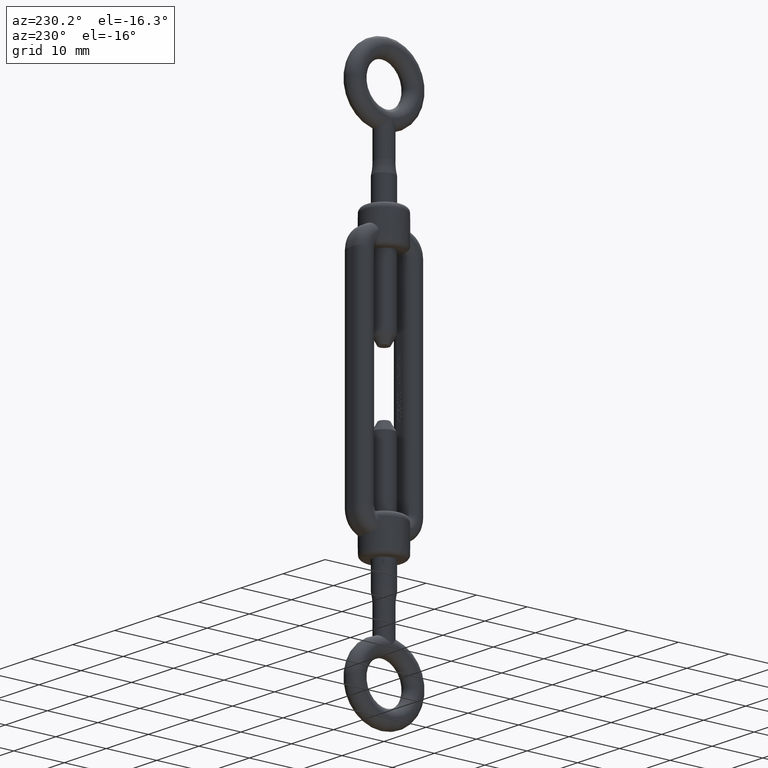
[diagram: clean part render]
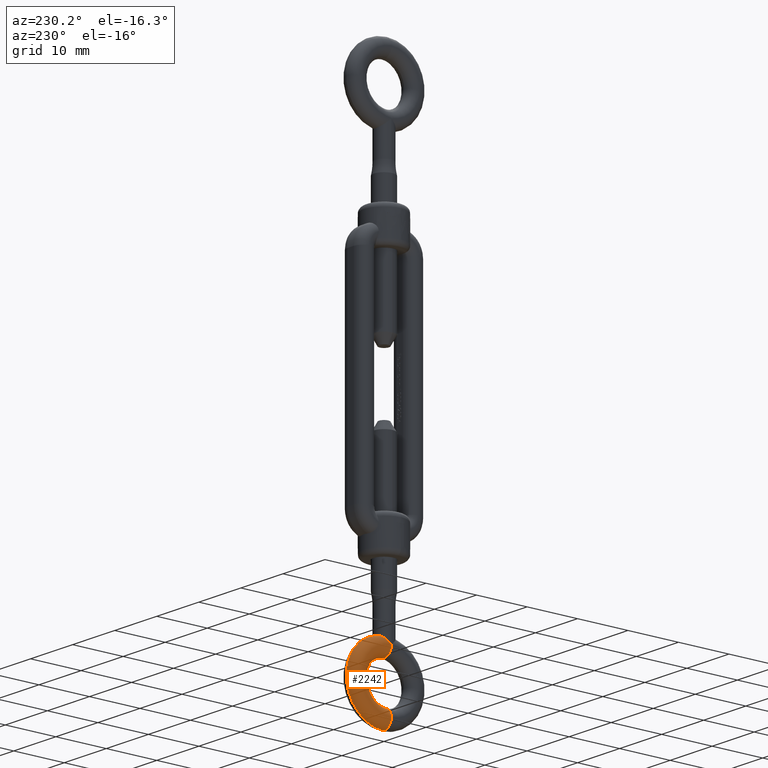
[diagram: same view with one face highlighted and labeled with its STEP entity id]
A machine part, auxiliary view. The second image highlights one B-rep face of the part: STEP entity #2242.
In plain terms, the highlighted toroidal blend (fillet) surface has major radius 5.75 mm and minor (blend) radius 1.75 mm.
Its self-contained STEP definition (entity closure, byte-faithful):
#128 = ORIENTED_EDGE ( 'NONE', *, *, #8138, .F. ) ;
#533 = ORIENTED_EDGE ( 'NONE', *, *, #10353, .T. ) ;
#965 = CARTESIAN_POINT ( 'NONE',  ( 5.645285852987865700E-027, -13.25000000000000000, -1.750000000000000900 ) ) ;
#1297 = CARTESIAN_POINT ( 'NONE',  ( 0.0000000000000000000, -3.500000000000000000, -6.039690927702273600E-016 ) ) ;
#2242 = ADVANCED_FACE ( 'NONE', ( #3321 ), #5197, .T. ) ;
#2330 = CARTESIAN_POINT ( 'NONE',  ( -0.1918324580474454200, -13.44173384753478800, -1.750000000000000900 ) ) ;
#3136 = ORIENTED_EDGE ( 'NONE', *, *, #9490, .F. ) ;
#3321 = FACE_OUTER_BOUND ( 'NONE', #15699, .T. ) ;
#3448 = VERTEX_POINT ( 'NONE', #6687 ) ;
#3559 = CARTESIAN_POINT ( 'NONE',  ( -1.673163314596055600, -14.73218205982129100, -0.5297443577829394900 ) ) ;
#3671 = CARTESIAN_POINT ( 'NONE',  ( -1.629171173080286700, -14.69722296284966000, -0.6517677642536324800 ) ) ;
#3929 = CIRCLE ( 'NONE', #4483, 7.500000000000000000 ) ;
#4074 = CARTESIAN_POINT ( 'NONE',  ( 0.0000000000000000000, -7.500000000000000000, -8.182822826210140600E-016 ) ) ;
#4132 = VERTEX_POINT ( 'NONE', #12163 ) ;
#4304 = CIRCLE ( 'NONE', #8559, 1.750000000000000000 ) ;
#4483 = AXIS2_PLACEMENT_3D ( 'NONE', #4074, #13375, #15999 ) ;
#4833 = CARTESIAN_POINT ( 'NONE',  ( -1.217838959239358800, -14.36097278892466300, -1.261771236147857000 ) ) ;
#4889 = CARTESIAN_POINT ( 'NONE',  ( -1.516541877302765200, -14.60667161725719300, -0.8826667910955876600 ) ) ;
#4940 = CARTESIAN_POINT ( 'NONE',  ( -1.750000000000000000, -14.79297607290741100, -1.577750232611953600E-015 ) ) ;
#5197 = TOROIDAL_SURFACE ( 'NONE', #11948, 5.750000000000000000, 1.750000000000000000 ) ;
#5483 = VERTEX_POINT ( 'NONE', #1297 ) ;
#5486 = AXIS2_PLACEMENT_3D ( 'NONE', #8125, #14807, #12347 ) ;
#5720 = VERTEX_POINT ( 'NONE', #6269 ) ;
#6107 = VERTEX_POINT ( 'NONE', #9371 ) ;
#6229 = CARTESIAN_POINT ( 'NONE',  ( -0.7720928522844274800, -13.97863472973736700, -1.583784484838959100 ) ) ;
#6269 = CARTESIAN_POINT ( 'NONE',  ( -1.750000000000000000, -14.79297607290741100, -1.577750232611953600E-015 ) ) ;
#6687 = CARTESIAN_POINT ( 'NONE',  ( 0.0000000000000000000, 1.084202172485504400E-016, 2.490424338411780800E-016 ) ) ;
#7801 = DIRECTION ( 'NONE',  ( -1.000000000000000000, 0.0000000000000000000, 0.0000000000000000000 ) ) ;
#8125 = CARTESIAN_POINT ( 'NONE',  ( 0.0000000000000000000, -7.500000000000000000, -6.039690927702272600E-016 ) ) ;
#8138 = EDGE_CURVE ( 'NONE', #4132, #6107, #13560, .T. ) ;
#8559 = AXIS2_PLACEMENT_3D ( 'NONE', #11906, #7801, #14420 ) ;
#8897 = CARTESIAN_POINT ( 'NONE',  ( -1.449694704314161700, -14.55249835651754800, -0.9876031791507212700 ) ) ;
#9097 = AXIS2_PLACEMENT_3D ( 'NONE', #13931, #16664, #15214 ) ;
#9371 = CARTESIAN_POINT ( 'NONE',  ( 4.898587196589411800E-016, -11.50000000000000000, -6.039690927702270600E-016 ) ) ;
#9490 = EDGE_CURVE ( 'NONE', #6107, #5483, #11154, .T. ) ;
#10311 = DIRECTION ( 'NONE',  ( 0.0000000000000000000, 1.000000000000000000, 1.423099621949589700E-016 ) ) ;
#10353 = EDGE_CURVE ( 'NONE', #5720, #3448, #3929, .T. ) ;
#11154 = CIRCLE ( 'NONE', #5486, 4.000000000000000000 ) ;
#11475 = ORIENTED_EDGE ( 'NONE', *, *, #11624, .T. ) ;
#11619 = DIRECTION ( 'NONE',  ( -0.0000000000000000000, 1.423099621949589700E-016, -1.000000000000000000 ) ) ;
#11624 = EDGE_CURVE ( 'NONE', #3448, #5483, #4304, .T. ) ;
#11813 = ORIENTED_EDGE ( 'NONE', *, *, #15956, .F. ) ;
#11906 = CARTESIAN_POINT ( 'NONE',  ( 0.0000000000000000000, -1.749999999999999800, 0.0000000000000000000 ) ) ;
#11948 = AXIS2_PLACEMENT_3D ( 'NONE', #15655, #11619, #10311 ) ;
#12163 = CARTESIAN_POINT ( 'NONE',  ( 5.645285852987865700E-027, -13.25000000000000000, -1.750000000000000900 ) ) ;
#12347 = DIRECTION ( 'NONE',  ( 0.0000000000000000000, 1.000000000000000000, 1.423099621949590000E-016 ) ) ;
#12855 = CARTESIAN_POINT ( 'NONE',  ( -1.750000000000000000, -14.79297607290741100, -0.1346006798177146500 ) ) ;
#13037 = B_SPLINE_CURVE_WITH_KNOTS ( 'NONE', 3,
 ( #4940, #12855, #15473, #3559, #3671, #4889, #8897, #15591, #4833, #14142, #6229, #16806, #2330, #965 ),
 .UNSPECIFIED., .F., .F.,
 ( 4, 2, 2, 2, 2, 2, 4 ),
 ( 0.003234267388771162300, 0.003641100614888048000, 0.004047933841004933300, 0.004454767067121819500, 0.004861600293238704800, 0.005675266745472475400, 0.006488933197706246900 ),
 .UNSPECIFIED. ) ;
#13375 = DIRECTION ( 'NONE',  ( -0.0000000000000000000, 1.423099621949589700E-016, -1.000000000000000000 ) ) ;
#13560 = CIRCLE ( 'NONE', #9097, 1.749999999999999800 ) ;
#13931 = CARTESIAN_POINT ( 'NONE',  ( 7.041719095097280900E-016, -13.25000000000000000, -1.636564565242028100E-015 ) ) ;
#14142 = CARTESIAN_POINT ( 'NONE',  ( -0.9600127264466309400, -14.14257816443164000, -1.480428686936889400 ) ) ;
#14420 = DIRECTION ( 'NONE',  ( 0.0000000000000000000, 0.0000000000000000000, 1.000000000000000000 ) ) ;
#14807 = DIRECTION ( 'NONE',  ( -0.0000000000000000000, 1.423099621949589700E-016, -1.000000000000000000 ) ) ;
#15214 = DIRECTION ( 'NONE',  ( -1.224646799147353500E-016, 1.000000000000000000, 0.0000000000000000000 ) ) ;
#15473 = CARTESIAN_POINT ( 'NONE',  ( -1.733906745827595200, -14.78031639460563600, -0.2714257885435308900 ) ) ;
#15591 = CARTESIAN_POINT ( 'NONE',  ( -1.300900210641580100, -14.43012239368454700, -1.176704473152808200 ) ) ;
#15655 = CARTESIAN_POINT ( 'NONE',  ( 0.0000000000000000000, -7.500000000000000000, -8.182822826210140600E-016 ) ) ;
#15699 = EDGE_LOOP ( 'NONE', ( #11813, #533, #11475, #3136, #128 ) ) ;
#15956 = EDGE_CURVE ( 'NONE', #5720, #4132, #13037, .T. ) ;
#15999 = DIRECTION ( 'NONE',  ( 0.0000000000000000000, 1.000000000000000000, 1.423099621949589700E-016 ) ) ;
#16664 = DIRECTION ( 'NONE',  ( 1.000000000000000000, 1.224646799147353200E-016, 1.742794396888373400E-032 ) ) ;
#16806 = CARTESIAN_POINT ( 'NONE',  ( -0.3852695614466261100, -13.62570323446409600, -1.719321968680687300 ) ) ;